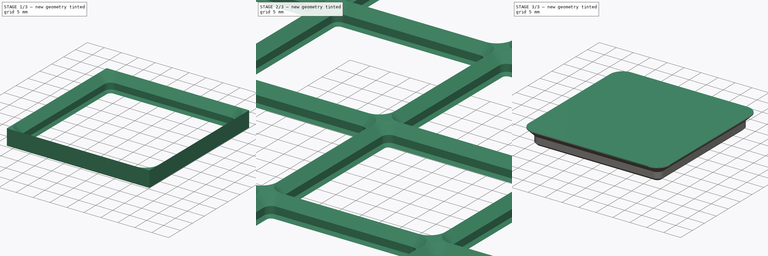
[diagram: build sequence overview — one tinted view per stage of 3, left to right]
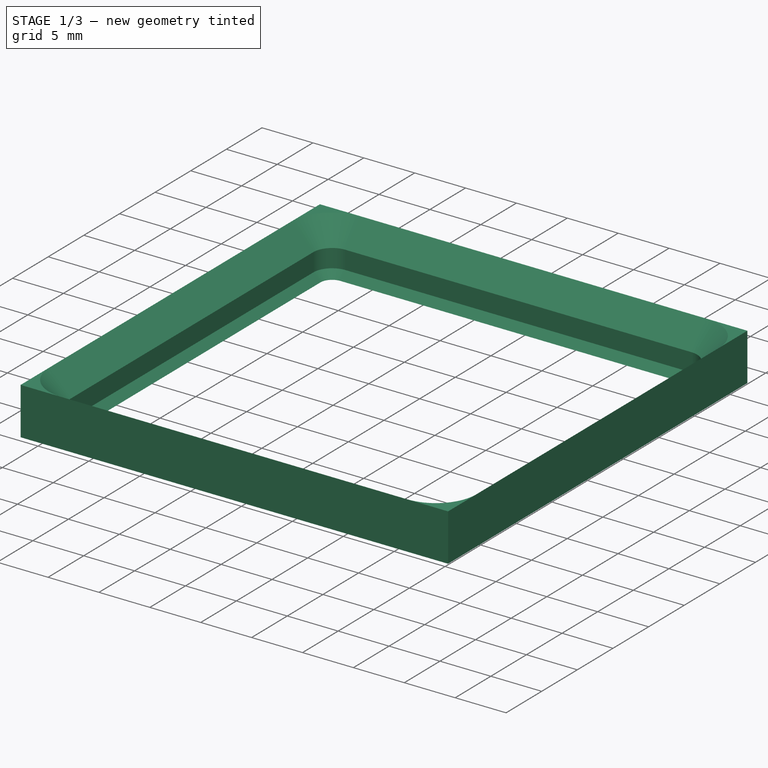
[diagram: stage 1 of 3 — iso view after this stage's code; geometry added in this stage tinted green]
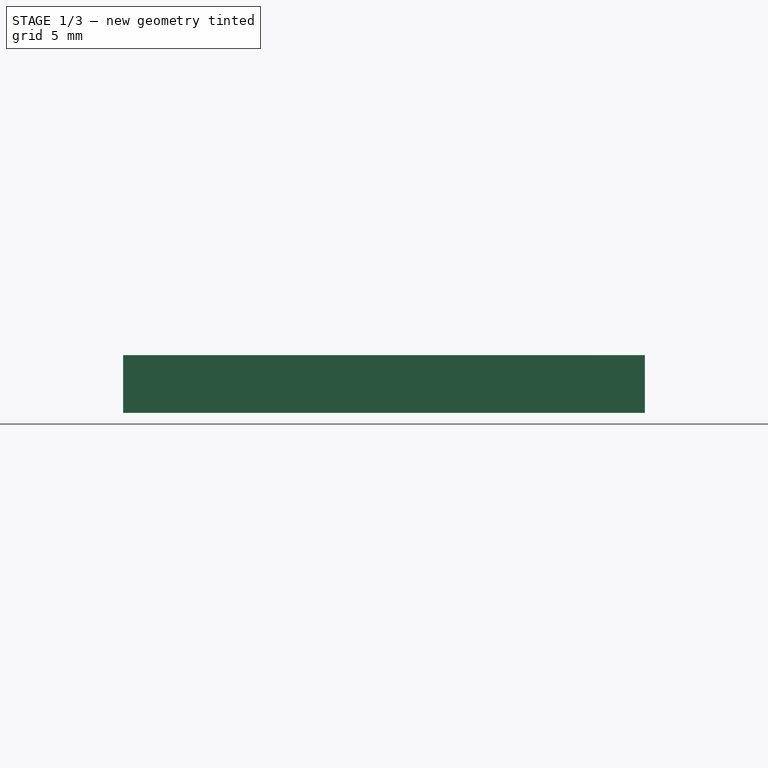
[diagram: stage 1 of 3 — front view after this stage's code; geometry added in this stage tinted green]
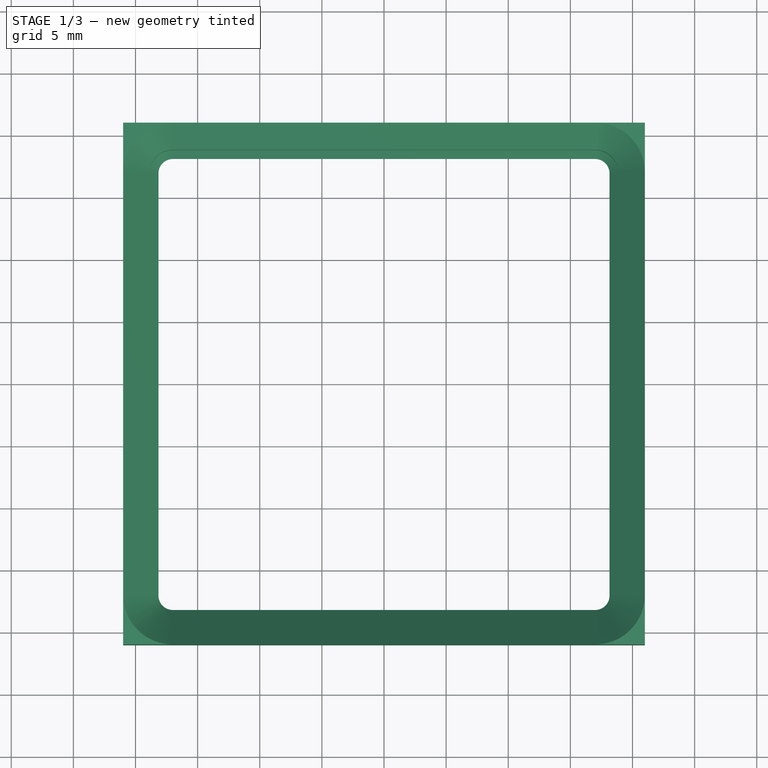
[diagram: stage 1 of 3 — top view after this stage's code; geometry added in this stage tinted green]
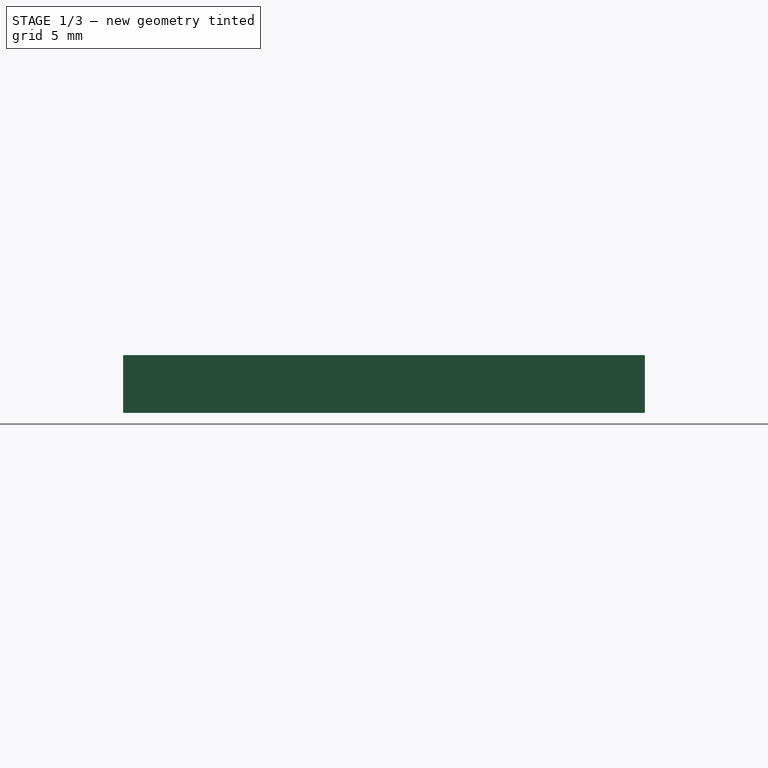
[diagram: stage 1 of 3 — right view after this stage's code; geometry added in this stage tinted green]
FCSTD DOCUMENT  (FreeCAD 1.0R39104 (Git))
Label: Opgave3_BasketFoot
License: All rights reserved
LicenseURL: http://en.wikipedia.org/wiki/All_rights_reserved
objects: Sketcher::SketchObject×8, PartDesign::Body×5, PartDesign::SubShapeBinder×3, PartDesign::AdditivePipe×2, PartDesign::SubtractivePipe×2, PartDesign::LinearPattern×2, App::VarSet×1, App::Part×1
note: 40 computed .brp shape members not serialized (recipe doc carries the construction recipe); baked Part::Feature solids carry a one-line shape summary decoded from their .brp

FEATURE [App::VarSet] VarSet
  BaseGridX = 4
  BaseGridY = 6
FEATURE [PartDesign::Body] Body001  label="BaseFoot"
  AllowCompound = true
  Origin = -> Origin002
FEATURE [PartDesign::Body] Body003  label="Basket"
  AllowCompound = true
  Origin = -> Origin004
FEATURE [PartDesign::Body] Body004  label="BasketInsert"
  AllowCompound = true
  Origin = -> Origin005
FEATURE [Sketcher::SketchObject] Sketch  label="Profile"
  ArcFitTolerance = 1e-06
  AttachmentSupport = -> [XZ_Plane001]
  FullyConstrained = false
  MakeInternals = false
  MapMode = 5
  Placement = pos=(0,0,0) rot=(1,0,0;1.5708rad)
  expr: Constraints[7] = 42 / 2
  sketch-geometry (5):
    g0: LineSegment StartX=-21 StartY=0 StartZ=0 EndX=-18.85 EndY=-2.15 EndZ=0
    g1: LineSegment StartX=-18.85 StartY=-2.15 StartZ=0 EndX=-18.85 EndY=-3.95 EndZ=0
    g2: LineSegment StartX=-18.85 StartY=-3.95 StartZ=0 EndX=-18.15 EndY=-4.65 EndZ=0
    g3: LineSegment StartX=-18.15 StartY=-4.65 StartZ=0 EndX=-18.15 EndY=0 EndZ=0
    g4: LineSegment StartX=-18.15 StartY=0 StartZ=0 EndX=-21 EndY=0 EndZ=0
  constraints (14):
    c: Coincident(g0,g1)
    c: Coincident(g1,g2)
    c: Vertical(g1)
    c: Parallel(g0,g2)
    c: DistanceY(g0,g0) = 2.15
    c: DistanceY(g1,g0) = 1.8
    c: DistanceY(g2,g1) = 0.7
    c: DistanceX(g0,g-1) = 21
    c: PointOnObject(g0,g-1)
    c: Coincident(g2,g3)
    c: Vertical(g3)
    c: Coincident(g3,g4)
    c: Horizontal(g4)
    c: Coincident(g0,g4)
FEATURE [Sketcher::SketchObject] Sketch001  label="SveepXY"
  ArcFitTolerance = 1e-06
  AttachmentSupport = -> [XY_Plane001]
  ExternalGeometry = -> [Sketch]
  FullyConstrained = true
  MakeInternals = false
  MapMode = 5
  sketch-geometry (10):
    g0: LineSegment StartX=21 StartY=-17 StartZ=0 EndX=21 EndY=17 EndZ=0
    g1: LineSegment StartX=17 StartY=21 StartZ=0 EndX=-17 EndY=21 EndZ=0
    g2: LineSegment StartX=-21 StartY=17 StartZ=0 EndX=-21 EndY=-17 EndZ=0
    g3: LineSegment StartX=-17 StartY=-21 StartZ=0 EndX=17 EndY=-21 EndZ=0
    g4: ArcOfCircle CenterX=17 CenterY=-17 CenterZ=0 NormalX=0 NormalY=0 NormalZ=1 AngleXU=0 Radius=4 StartAngle=4.71239 EndAngle=6.28319
    g5: ArcOfCircle CenterX=17 CenterY=17 CenterZ=0 NormalX=0 NormalY=0 NormalZ=1 AngleXU=0 Radius=4 StartAngle=4e-16 EndAngle=1.5708
    g6: ArcOfCircle CenterX=-17 CenterY=17 CenterZ=0 NormalX=0 NormalY=0 NormalZ=1 AngleXU=0 Radius=4 StartAngle=1.5708 EndAngle=3.14159
    g7: ArcOfCircle CenterX=-17 CenterY=-17 CenterZ=0 NormalX=0 NormalY=0 NormalZ=1 AngleXU=0 Radius=4 StartAngle=3.14159 EndAngle=4.71239
    g8: GeomPoint [constr] X=-21 Y=21 Z=0
    g9: GeomPoint [constr] X=0 Y=0 Z=0
  constraints (22):
    c: Tangent(g0,g4) = -1.5708
    c: Tangent(g0,g5) = -1.5708
    c: Tangent(g1,g5) = -1.5708
    c: Tangent(g1,g6) = -1.5708
    c: Tangent(g2,g6) = -1.5708
    c: Tangent(g2,g7) = -1.5708
    c: Tangent(g3,g7) = -1.5708
    c: Tangent(g3,g4) = -1.5708
    c: Vertical(g0)
    c: Vertical(g2)
    c: Horizontal(g1)
    c: Horizontal(g3)
    c: Equal(g4,g5)
    c: Equal(g5,g6)
    c: Equal(g6,g7)
    c: Symmetric(g2,g0,g9)
    c: PointOnObject(g8,g1)
    c: PointOnObject(g8,g2)
    c: Coincident(g9,g-1)
    c: Equal(g1,g2)
    c: Vertical(g2,g-3)
    c: Radius(g6) = 4
FEATURE [Sketcher::SketchObject] Sketch002  label="Base001"
  ArcFitTolerance = 1e-06
  AttachmentSupport = -> [XY_Plane001]
  ExternalGeometry = -> [Sketch,Sketch001]
  FullyConstrained = true
  MakeInternals = false
  MapMode = 5
  sketch-geometry (15):
    g0: LineSegment StartX=21 StartY=-21 StartZ=0 EndX=21 EndY=21 EndZ=0
    g1: LineSegment StartX=21 StartY=21 StartZ=0 EndX=-21 EndY=21 EndZ=0
    g2: LineSegment StartX=-21 StartY=21 StartZ=0 EndX=-21 EndY=-21 EndZ=0
    g3: LineSegment StartX=-21 StartY=-21 StartZ=0 EndX=21 EndY=-21 EndZ=0
    g4: GeomPoint [constr] X=0 Y=0 Z=0
    g5: LineSegment StartX=-17 StartY=-18.15 StartZ=0 EndX=17 EndY=-18.15 EndZ=0
    g6: LineSegment StartX=18.15 StartY=-17 StartZ=0 EndX=18.15 EndY=17 EndZ=0
    g7: LineSegment StartX=17 StartY=18.15 StartZ=0 EndX=-17 EndY=18.15 EndZ=0
    g8: LineSegment StartX=-18.15 StartY=17 StartZ=0 EndX=-18.15 EndY=-17 EndZ=0
    g9: ArcOfCircle CenterX=-17 CenterY=-17 CenterZ=0 NormalX=0 NormalY=0 NormalZ=1 AngleXU=0 Radius=1.15 StartAngle=3.14159 EndAngle=4.71239
    g10: ArcOfCircle CenterX=17 CenterY=-17 CenterZ=0 NormalX=0 NormalY=0 NormalZ=1 AngleXU=0 Radius=1.15 StartAngle=4.71239 EndAngle=6.28319
    g11: ArcOfCircle CenterX=17 CenterY=17 CenterZ=0 NormalX=0 NormalY=0 NormalZ=1 AngleXU=0 Radius=1.15 StartAngle=-9e-16 EndAngle=1.5708
    g12: ArcOfCircle CenterX=-17 CenterY=17 CenterZ=0 NormalX=0 NormalY=0 NormalZ=1 AngleXU=0 Radius=1.15 StartAngle=1.5708 EndAngle=3.14159
    g13: GeomPoint [constr] X=18.15 Y=18.15 Z=0
    g14: GeomPoint [constr] X=0 Y=0 Z=0
  constraints (33):
    c: Coincident(g0,g1)
    c: Coincident(g1,g2)
    c: Coincident(g2,g3)
    c: Coincident(g3,g0)
    c: Vertical(g0)
    c: Vertical(g2)
    c: Horizontal(g1)
    c: Horizontal(g3)
    c: Symmetric(g2,g0,g4)
    c: Coincident(g4,g-1)
    c: Equal(g2,g1)
    c: Vertical(g1,g-3)
    c: Tangent(g5,g9) = -1.5708
    c: Tangent(g5,g10) = -1.5708
    c: Tangent(g6,g10) = -1.5708
    c: Tangent(g6,g11) = -1.5708
    c: Tangent(g7,g11) = -1.5708
    c: Tangent(g7,g12) = -1.5708
    c: Tangent(g8,g12) = -1.5708
    c: Tangent(g8,g9) = -1.5708
    c: Horizontal(g5)
    c: Horizontal(g7)
    c: Vertical(g6)
    c: Vertical(g8)
    c: Equal(g9,g10)
    c: Equal(g10,g11)
    c: Equal(g11,g12)
    c: Symmetric(g7,g5,g14)
    c: PointOnObject(g13,g6)
    c: PointOnObject(g13,g7)
    c: Coincident(g14,g4)
    c: Coincident(g9,g-4)
    c: Vertical(g-3,g8)
FEATURE [Sketcher::SketchObject] Sketch003  label="SveepZ"
  ArcFitTolerance = 1e-06
  AttachmentSupport = -> [XZ_Plane001]
  ExternalGeometry = -> [Sketch]
  FullyConstrained = true
  MakeInternals = false
  MapMode = 5
  Placement = pos=(0,0,0) rot=(1,0,0;1.5708rad)
  sketch-geometry (1):
    g0: LineSegment StartX=-18.15 StartY=0 StartZ=0 EndX=-18.15 EndY=-4.65 EndZ=0
  constraints (2):
    c: Coincident(g0,g-3)
    c: Coincident(g0,g-3)
FEATURE [PartDesign::AdditivePipe] AdditivePipe
  AuxilleryCurvelinear = true
  AuxillerySpineTangent = false
  Binormal = (0,0,0)
  Mode = 0
  Profile = -> Sketch002
  Refine = true
  Spine = -> Sketch003
  SpineTangent = false
  Suppressed = false
  Transformation = 0
  Transition = 0
FEATURE [PartDesign::SubtractivePipe] SubtractivePipe
  AuxilleryCurvelinear = true
  AuxillerySpineTangent = false
  BaseFeature = -> AdditivePipe
  Binormal = (0,0,0)
  Mode = 0
  Profile = -> Sketch
  Refine = true
  Spine = -> Sketch001
  SpineTangent = false
  Suppressed = false
  Transformation = 0
  Transition = 0
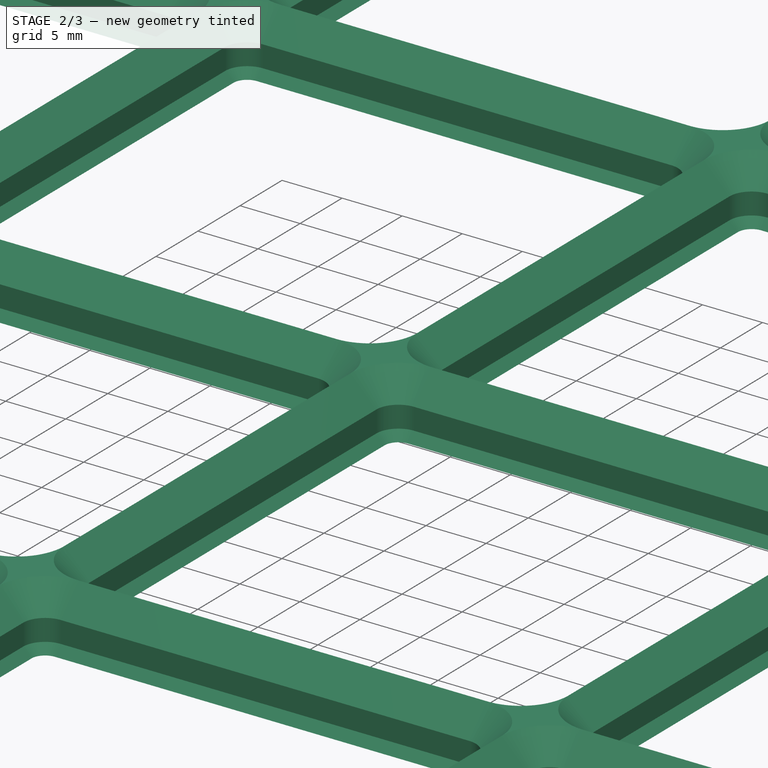
[diagram: stage 2 of 3 — iso view after this stage's code; geometry added in this stage tinted green]
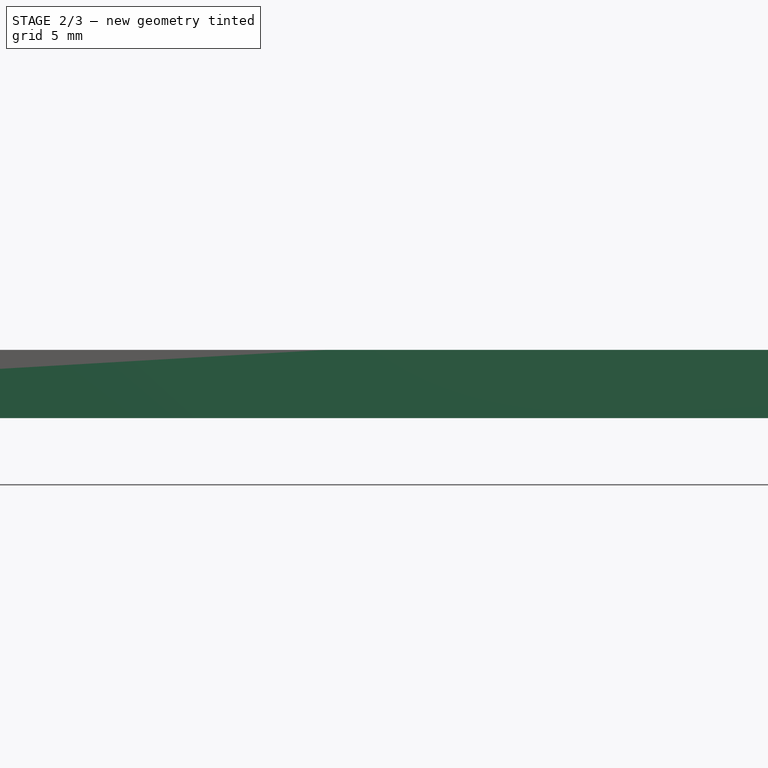
[diagram: stage 2 of 3 — front view after this stage's code; geometry added in this stage tinted green]
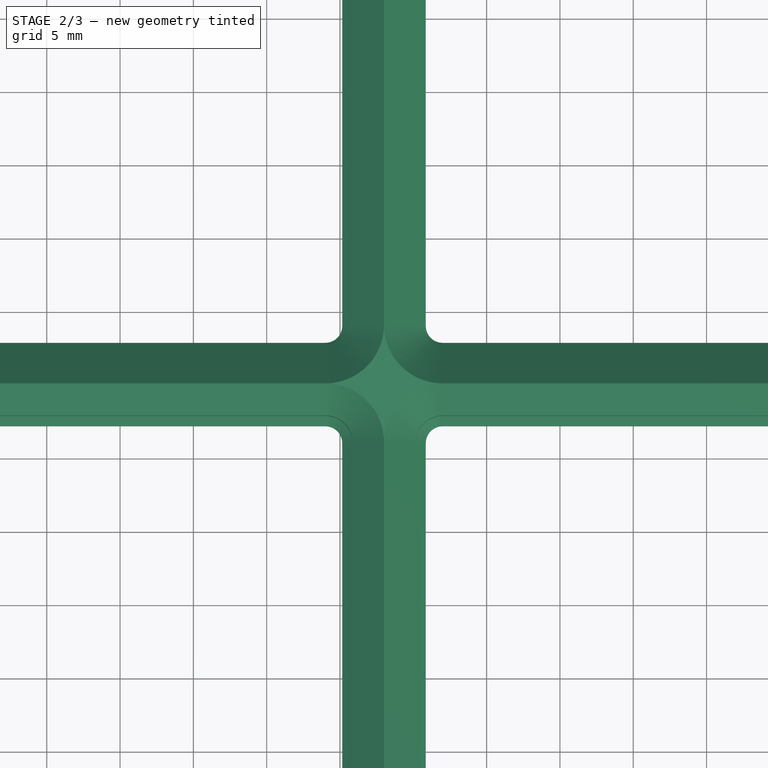
[diagram: stage 2 of 3 — top view after this stage's code; geometry added in this stage tinted green]
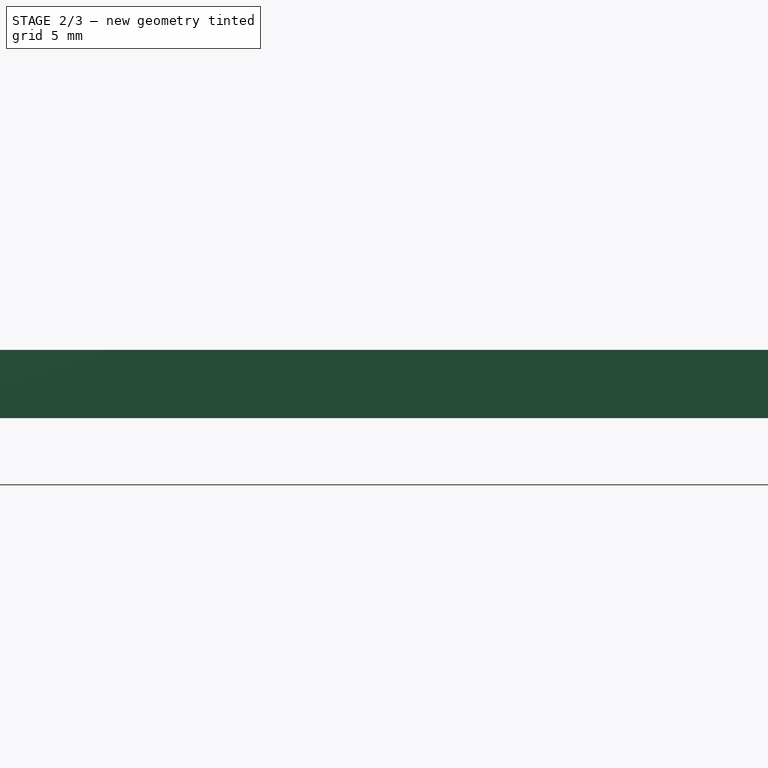
[diagram: stage 2 of 3 — right view after this stage's code; geometry added in this stage tinted green]
FEATURE [PartDesign::LinearPattern] LinearPattern
  BaseFeature = -> SubtractivePipe
  Direction = -> X_Axis001
  Length = 126
  Mode = 1
  Occurrences = 4
  Offset = 42
  Originals = -> [SubtractivePipe]
  Refine = true
  Suppressed = false
  TransformMode = 1
  expr: Occurrences = VarSet.BaseGridX
FEATURE [PartDesign::LinearPattern] LinearPattern001
  BaseFeature = -> LinearPattern
  Direction = -> Y_Axis001
  Length = 210
  Mode = 1
  Occurrences = 6
  Offset = 42
  Originals = -> [LinearPattern]
  Refine = true
  Suppressed = false
  TransformMode = 1
  expr: Occurrences = VarSet.BaseGridY
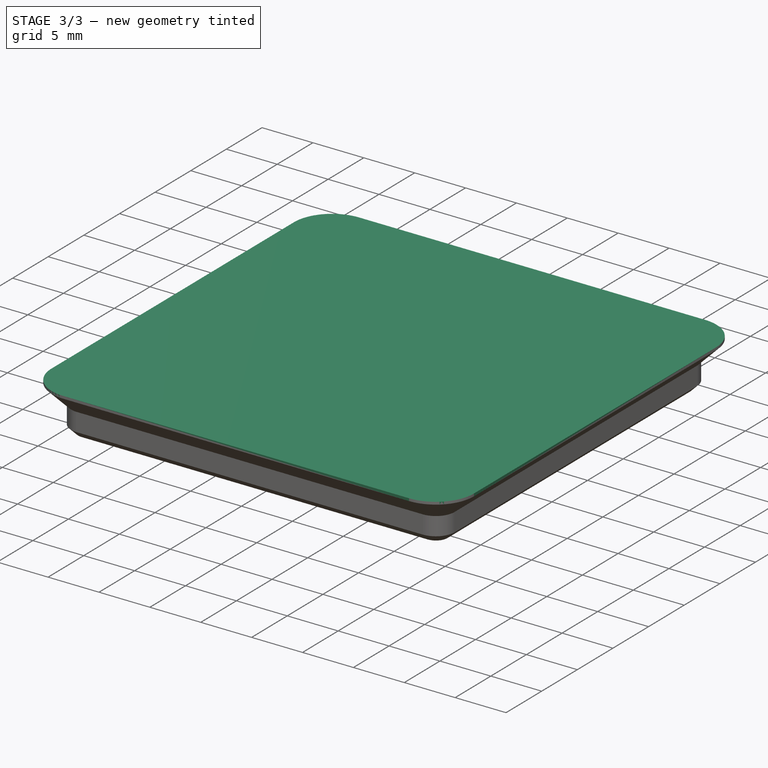
[diagram: stage 3 of 3 — iso view after this stage's code; geometry added in this stage tinted green]
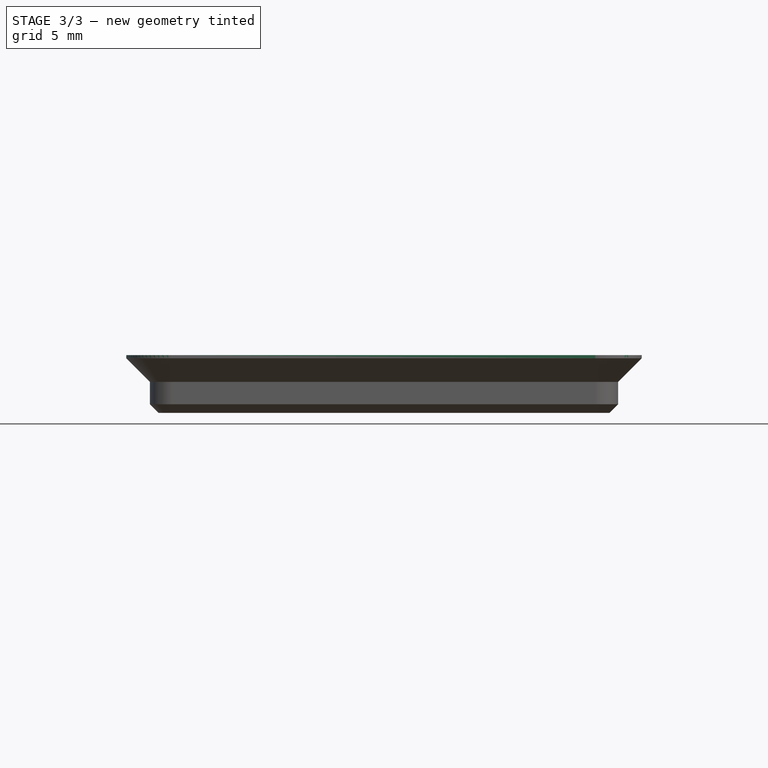
[diagram: stage 3 of 3 — front view after this stage's code; geometry added in this stage tinted green]
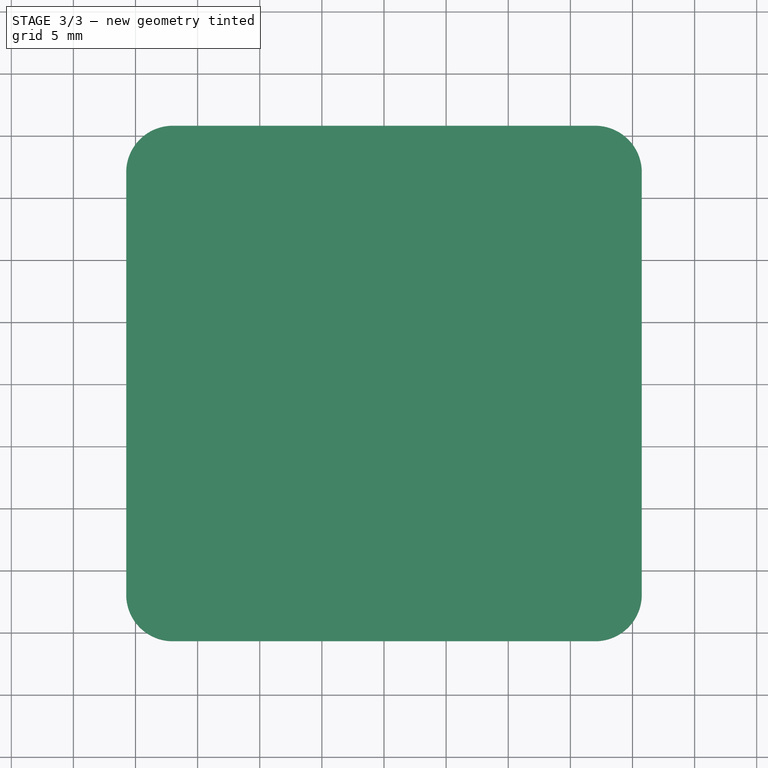
[diagram: stage 3 of 3 — top view after this stage's code; geometry added in this stage tinted green]
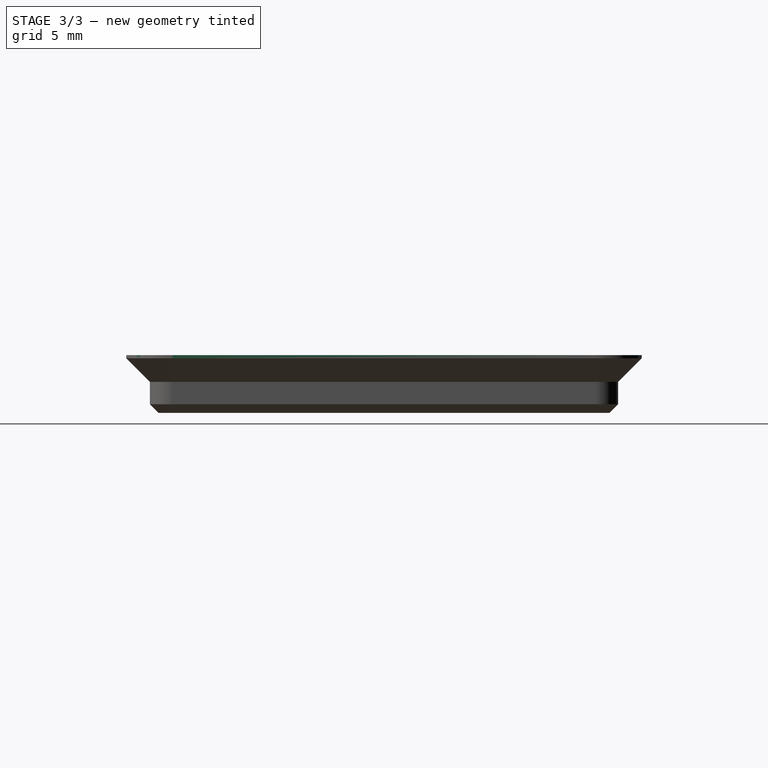
[diagram: stage 3 of 3 — right view after this stage's code; geometry added in this stage tinted green]
FEATURE [PartDesign::Body] Body  label="Base"
  AllowCompound = true
  Group = -> [Sketch,Sketch001,Sketch002,Sketch003,AdditivePipe,SubtractivePipe,LinearPattern,LinearPattern001]
  Origin = -> Origin001
  Tip = -> LinearPattern001
FEATURE [PartDesign::SubShapeBinder] Binder
  BindCopyOnChange = 0
  BindMode = 0
  ClaimChildren = false
  Context = -> Part [Body002.Binder.]
  Fuse = false
  MakeFace = true
  OffsetFill = false
  OffsetIntersection = false
  OffsetJoinType = 0
  OffsetOpenResult = false
  PartialLoad = false
  Refine = true
  Relative = true
  Support = -> [Body[Sketch003.]]
  _Version = 2
FEATURE [PartDesign::SubShapeBinder] Binder001
  BindCopyOnChange = 0
  BindMode = 0
  ClaimChildren = false
  Context = -> Part [Body002.Binder001.]
  Fuse = false
  MakeFace = true
  OffsetFill = false
  OffsetIntersection = false
  OffsetJoinType = 0
  OffsetOpenResult = false
  PartialLoad = false
  Refine = true
  Relative = true
  Support = -> [Body[Sketch.]]
  _Version = 2
FEATURE [PartDesign::SubShapeBinder] Binder002
  BindCopyOnChange = 0
  BindMode = 0
  ClaimChildren = false
  Context = -> Part [Body002.Binder002.]
  Fuse = false
  MakeFace = true
  OffsetFill = false
  OffsetIntersection = false
  OffsetJoinType = 0
  OffsetOpenResult = false
  PartialLoad = false
  Refine = true
  Relative = true
  Support = -> [Body[Sketch001.]]
  _Version = 2
FEATURE [Sketcher::SketchObject] Sketch004
  ArcFitTolerance = 1e-06
  AttachmentSupport = -> [XZ_Plane003]
  ExternalGeometry = -> [Binder001]
  FullyConstrained = true
  MakeInternals = false
  MapMode = 5
  Placement = pos=(0,0,0) rot=(1,0,0;1.5708rad)
  sketch-geometry (5):
    g0: LineSegment StartX=-21 StartY=0 StartZ=0 EndX=-18.85 EndY=-2.15 EndZ=0
    g1: LineSegment StartX=-18.85 StartY=-2.15 StartZ=0 EndX=-18.85 EndY=-3.95 EndZ=0
    g2: LineSegment StartX=-18.85 StartY=-3.95 StartZ=0 EndX=-18.15 EndY=-4.65 EndZ=0
    g3: LineSegment StartX=-18.15 StartY=-4.65 StartZ=0 EndX=-21 EndY=-4.65 EndZ=0
    g4: LineSegment StartX=-21 StartY=-4.65 StartZ=0 EndX=-21 EndY=0 EndZ=0
  constraints (11):
    c: Coincident(g-3,g0)
    c: Coincident(g0,g-4)
    c: Coincident(g0,g1)
    c: Coincident(g1,g-5)
    c: Coincident(g1,g2)
    c: Coincident(g2,g-5)
    c: Coincident(g2,g3)
    c: Horizontal(g3)
    c: Coincident(g3,g4)
    c: Vertical(g4)
    c: Coincident(g0,g4)
FEATURE [Sketcher::SketchObject] Sketch005
  ArcFitTolerance = 1e-06
  AttachmentSupport = -> [XY_Plane003]
  ExternalGeometry = -> [Binder002]
  FullyConstrained = true
  MakeInternals = false
  MapMode = 5
  sketch-geometry (10):
    g0: LineSegment StartX=-17 StartY=-21 StartZ=0 EndX=17 EndY=-21 EndZ=0
    g1: LineSegment StartX=21 StartY=-17 StartZ=0 EndX=21 EndY=17 EndZ=0
    g2: LineSegment StartX=17 StartY=21 StartZ=0 EndX=-17 EndY=21 EndZ=0
    g3: LineSegment StartX=-21 StartY=17 StartZ=0 EndX=-21 EndY=-17 EndZ=0
    g4: ArcOfCircle CenterX=-17 CenterY=-17 CenterZ=0 NormalX=0 NormalY=0 NormalZ=1 AngleXU=0 Radius=4 StartAngle=3.14159 EndAngle=4.71239
    g5: ArcOfCircle CenterX=17 CenterY=-17 CenterZ=0 NormalX=0 NormalY=0 NormalZ=1 AngleXU=0 Radius=4 StartAngle=4.71239 EndAngle=6.28319
    g6: ArcOfCircle CenterX=17 CenterY=17 CenterZ=0 NormalX=0 NormalY=0 NormalZ=1 AngleXU=0 Radius=4 StartAngle=-9e-16 EndAngle=1.5708
    g7: ArcOfCircle CenterX=-17 CenterY=17 CenterZ=0 NormalX=0 NormalY=0 NormalZ=1 AngleXU=0 Radius=4 StartAngle=1.5708 EndAngle=3.14159
    g8: GeomPoint [constr] X=21 Y=21 Z=0
    g9: GeomPoint [constr] X=0 Y=0 Z=0
  constraints (20):
    c: Tangent(g0,g4) = -1.5708
    c: Tangent(g0,g5) = -1.5708
    c: Tangent(g1,g5) = -1.5708
    c: Tangent(g1,g6) = -1.5708
    c: Tangent(g2,g6) = -1.5708
    c: Tangent(g2,g7) = -1.5708
    c: Tangent(g3,g7) = -1.5708
    c: Tangent(g3,g4) = -1.5708
    c: Horizontal(g0)
    c: Horizontal(g2)
    c: Vertical(g1)
    c: Equal(g4,g5)
    c: Equal(g5,g6)
    c: Equal(g6,g7)
    c: Symmetric(g2,g0,g9)
    c: PointOnObject(g8,g1)
    c: PointOnObject(g8,g2)
    c: Coincident(g9,g-1)
    c: Coincident(g4,g-3)
    c: Coincident(g3,g-3)
FEATURE [Sketcher::SketchObject] Sketch006
  ArcFitTolerance = 1e-06
  AttachmentSupport = -> [XY_Plane003]
  ExternalGeometry = -> [Sketch005]
  FullyConstrained = true
  MakeInternals = false
  MapMode = 5
  sketch-geometry (10):
    g0: LineSegment StartX=-17 StartY=-20.75 StartZ=0 EndX=17 EndY=-20.75 EndZ=0
    g1: LineSegment StartX=20.75 StartY=-17 StartZ=0 EndX=20.75 EndY=17 EndZ=0
    g2: LineSegment StartX=17 StartY=20.75 StartZ=0 EndX=-17 EndY=20.75 EndZ=0
    g3: LineSegment StartX=-20.75 StartY=17 StartZ=0 EndX=-20.75 EndY=-17 EndZ=0
    g4: ArcOfCircle CenterX=-17 CenterY=-17 CenterZ=0 NormalX=0 NormalY=0 NormalZ=1 AngleXU=0 Radius=3.75 StartAngle=3.14159 EndAngle=4.71239
    g5: ArcOfCircle CenterX=17 CenterY=-17 CenterZ=0 NormalX=0 NormalY=0 NormalZ=1 AngleXU=0 Radius=3.75 StartAngle=4.71239 EndAngle=6.28319
    g6: ArcOfCircle CenterX=17 CenterY=17 CenterZ=0 NormalX=0 NormalY=0 NormalZ=1 AngleXU=0 Radius=3.75 StartAngle=0 EndAngle=1.5708
    g7: ArcOfCircle CenterX=-17 CenterY=17 CenterZ=0 NormalX=0 NormalY=0 NormalZ=1 AngleXU=0 Radius=3.75 StartAngle=1.5708 EndAngle=3.14159
    g8: GeomPoint [constr] X=20.75 Y=20.75 Z=0
    g9: GeomPoint [constr] X=0 Y=0 Z=0
  constraints (21):
    c: Tangent(g0,g4) = -1.5708
    c: Tangent(g0,g5) = -1.5708
    c: Tangent(g1,g5) = -1.5708
    c: Tangent(g1,g6) = -1.5708
    c: Tangent(g2,g6) = -1.5708
    c: Tangent(g2,g7) = -1.5708
    c: Tangent(g3,g7) = -1.5708
    c: Tangent(g3,g4) = -1.5708
    c: Horizontal(g0)
    c: Horizontal(g2)
    c: Vertical(g1)
    c: Vertical(g3)
    c: Equal(g4,g5)
    c: Equal(g5,g6)
    c: Equal(g6,g7)
    c: Symmetric(g2,g0,g9)
    c: PointOnObject(g8,g1)
    c: PointOnObject(g8,g2)
    c: Coincident(g9,g-1)
    c: Coincident(g4,g-3)
    c: Distance(g-3,g3) = 0.25
FEATURE [Sketcher::SketchObject] Sketch007
  ArcFitTolerance = 1e-06
  AttachmentSupport = -> [XZ_Plane003]
  ExternalGeometry = -> [Sketch004]
  FullyConstrained = true
  MakeInternals = false
  MapMode = 5
  Placement = pos=(0,0,0) rot=(1,0,0;1.5708rad)
  sketch-geometry (1):
    g0: LineSegment StartX=-21 StartY=0 StartZ=0 EndX=-21 EndY=-4.65 EndZ=0
  constraints (2):
    c: Coincident(g0,g-3)
    c: Coincident(g0,g-3)
FEATURE [PartDesign::AdditivePipe] AdditivePipe001
  AuxilleryCurvelinear = true
  AuxillerySpineTangent = false
  Binormal = (0,0,0)
  Mode = 0
  Profile = -> Sketch006
  Refine = true
  Spine = -> Sketch007
  SpineTangent = false
  Suppressed = false
  Transformation = 0
  Transition = 0
FEATURE [PartDesign::SubtractivePipe] SubtractivePipe001
  AuxilleryCurvelinear = true
  AuxillerySpineTangent = false
  BaseFeature = -> AdditivePipe001
  Binormal = (0,0,0)
  Mode = 0
  Profile = -> Sketch004
  Refine = true
  Spine = -> Sketch005
  SpineTangent = false
  Suppressed = false
  Transformation = 0
  Transition = 0
FEATURE [PartDesign::Body] Body002  label="BasketFoot"
  AllowCompound = true
  Group = -> [Binder,Binder001,Binder002,Sketch004,Sketch005,Sketch006,Sketch007,AdditivePipe001,SubtractivePipe001]
  Origin = -> Origin003
  Tip = -> SubtractivePipe001
FEATURE [App::Part] Part
  Group = -> [Body,Body001,Body002,Body003,Body004]
  Origin = -> Origin
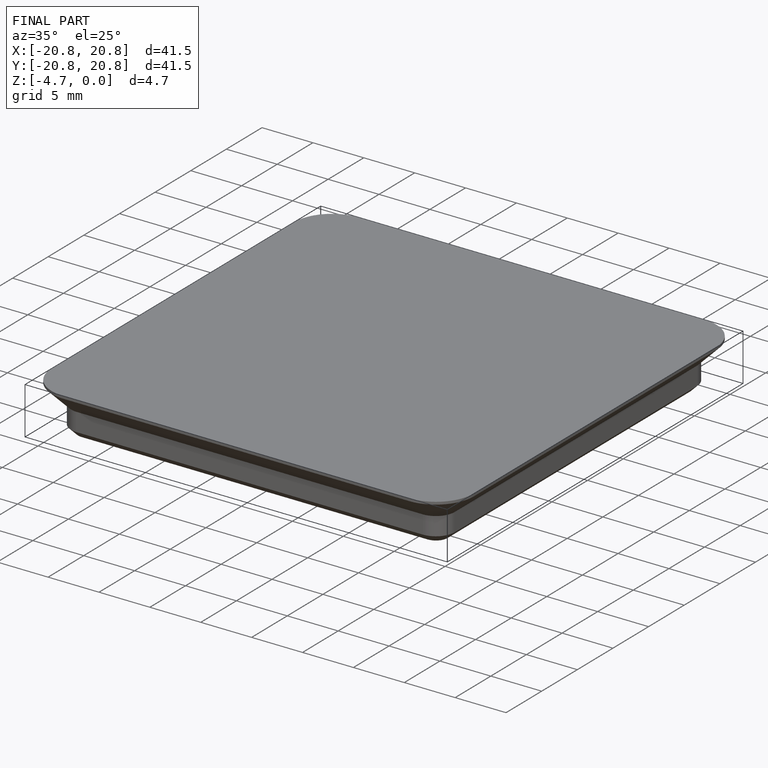
[diagram: finished part — iso view with bounding-box wireframe]
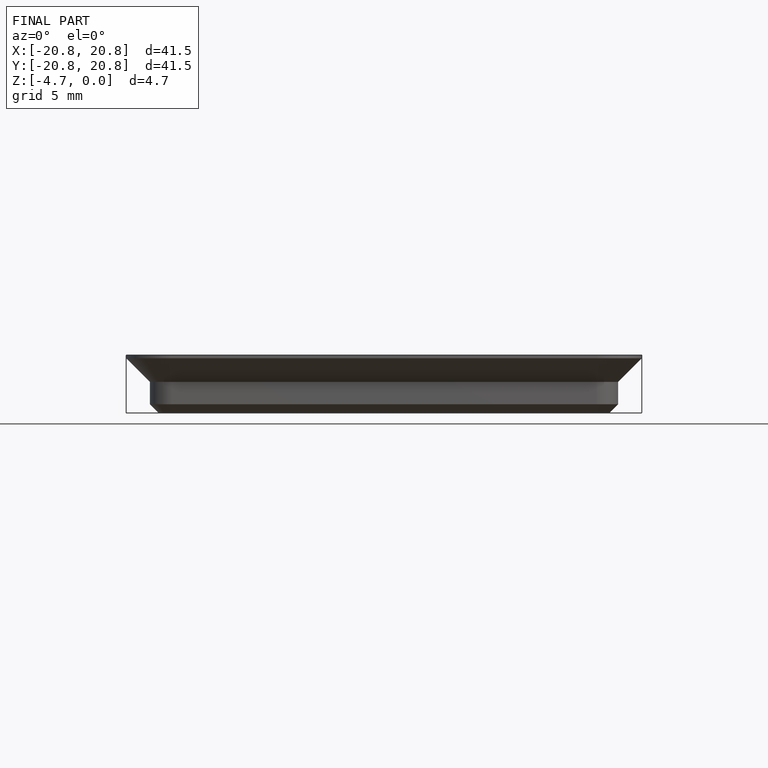
[diagram: finished part — front view with bounding-box wireframe]
